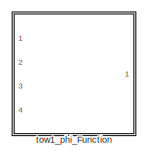
[diagram: root canvas - part 1/5, top center region]
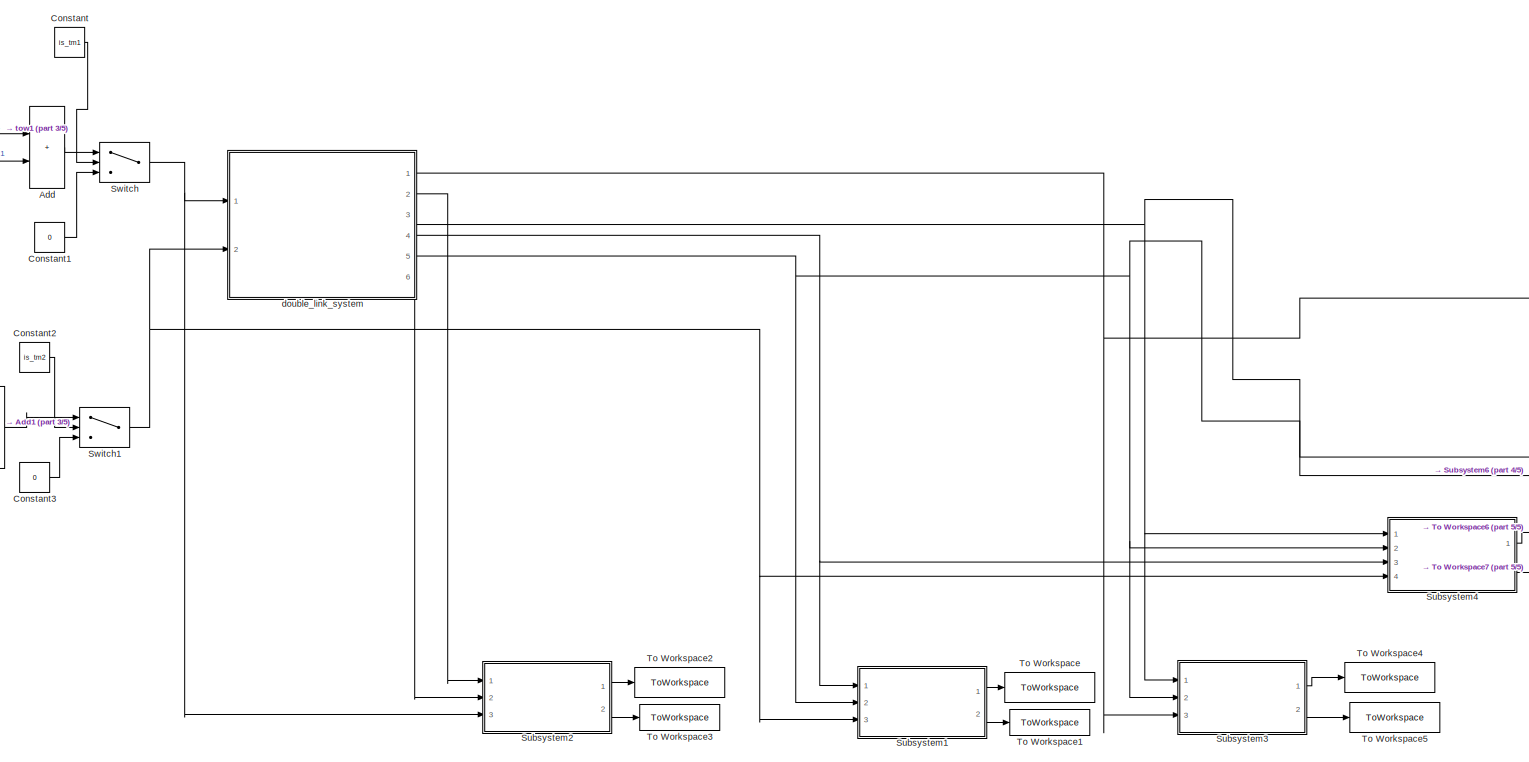
[diagram: root canvas - part 2/5, central region]
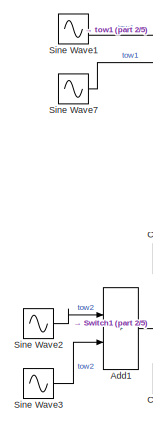
[diagram: root canvas - part 3/5, middle left region]
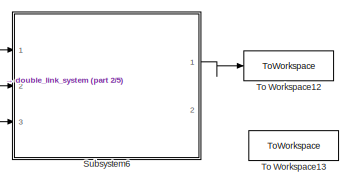
[diagram: root canvas - part 4/5, middle right region]
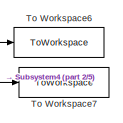
[diagram: root canvas - part 5/5, bottom right region]
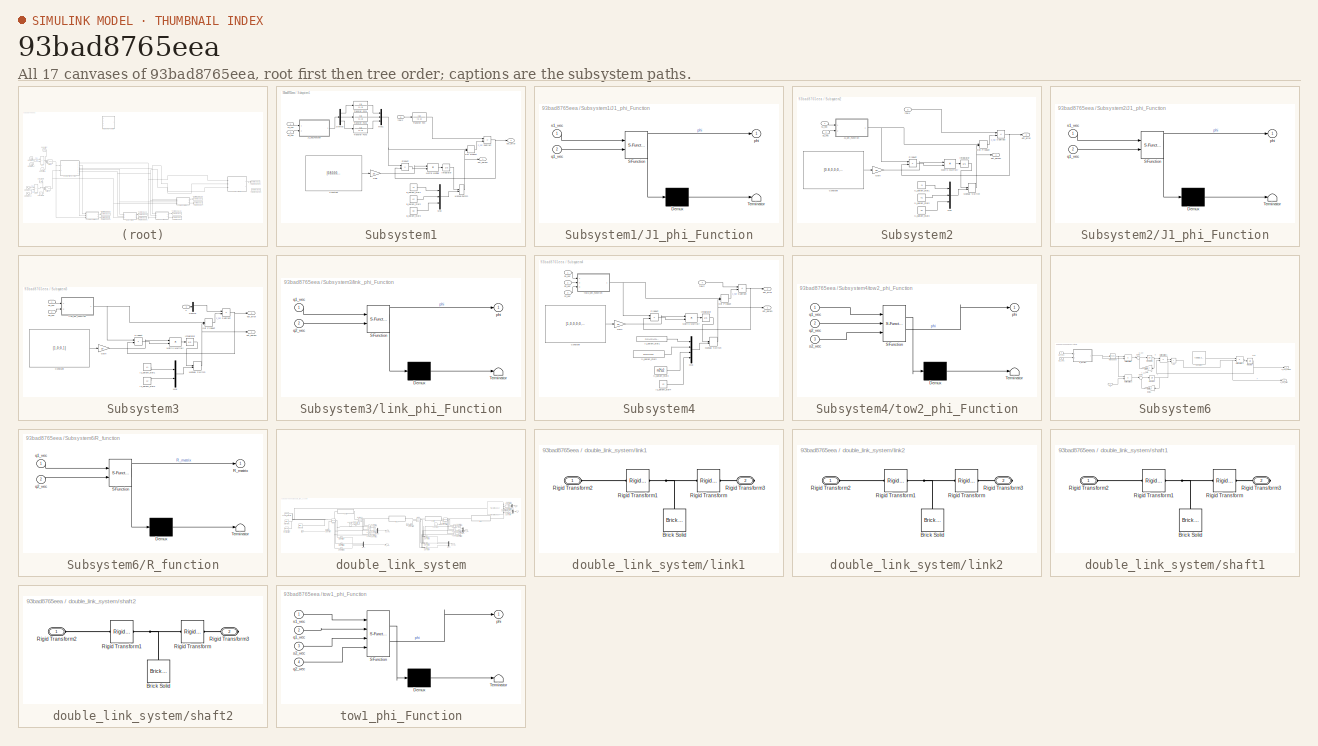
[diagram: thumbnail index - all 17 canvases of the model, root first then tree order]
MODEL slx_93bad8765eea
KIND model
CONFIG AbsTol = auto
CONFIG EnableMultiTasking = on
CONFIG FixedStep = auto
CONFIG MaxStep = 0.01
CONFIG MinStep = auto
CONFIG RelTol = 1e-5
CONFIG SampleTimeConstraint = Unconstrained
CONFIG SolverName = ode15s
CONFIG StartTime = 0.0
CONFIG StopTime = 10.0
BLOCK [Sum] Add
  IconShape = rectangular
  Ports = [2, 1]
BLOCK [Sum] Add1
  IconShape = rectangular
  Ports = [2, 1]
BLOCK [Constant] Constant
  Value = is_tm1
BLOCK [Constant] Constant1
  Value = 0
BLOCK [Constant] Constant2
  Value = is_tm2
BLOCK [Constant] Constant3
  Value = 0
BLOCK [Sin] Sine Wave1
  Amplitude = 2
  Ports = [0, 1]
  SampleTime = 0
BLOCK [Sin] Sine Wave2
  Amplitude = 2
  Ports = [0, 1]
  SampleTime = 0
BLOCK [Sin] Sine Wave3
  Frequency = 0.5
  Ports = [0, 1]
  SampleTime = 0
BLOCK [Sin] Sine Wave7
  Frequency = 0.5
  Ports = [0, 1]
  SampleTime = 0
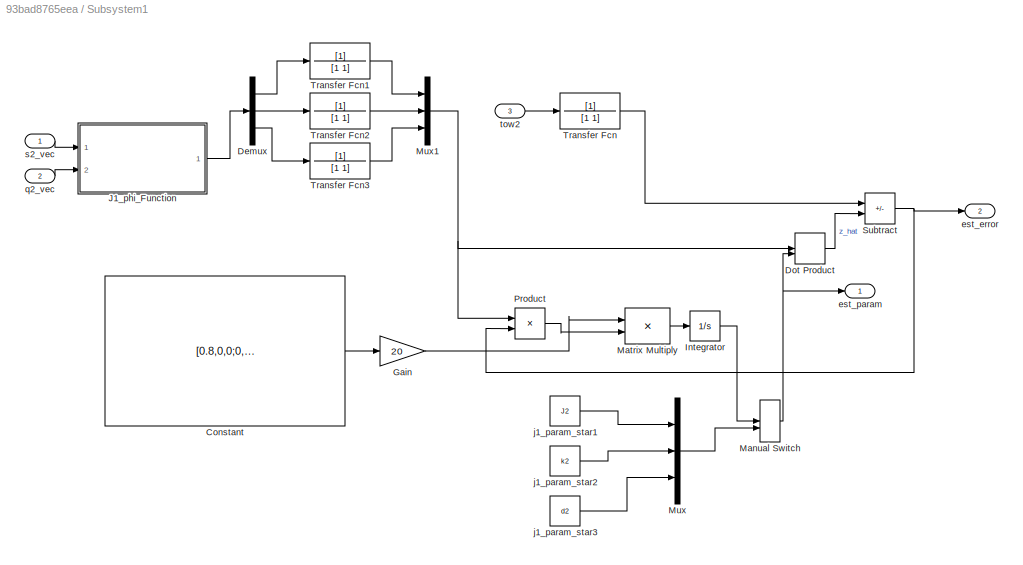
BLOCK [SubSystem] Subsystem1
  Ports = [3, 2]
  RequestExecContextInheritance = off
BLOCK [Constant] Subsystem1/Constant
  Value = [0.8,0,0;0,80,0;0,0,20]
BLOCK [Demux] Subsystem1/Demux
  Outputs = 3
  Ports = [1, 3]
BLOCK [DotProduct] Subsystem1/Dot Product
  OutDataTypeStr = Inherit: Inherit via internal rule
BLOCK [Gain] Subsystem1/Gain
  Gain = 20
BLOCK [Integrator] Subsystem1/Integrator
  InitialCondition = [0.0001;0.0001;0.0001]
  Ports = [1, 1]
BLOCK [SubSystem] Subsystem1/J1_phi_Function
  ErrorFcn = Stateflow.Translate.translate
  PermitHierarchicalResolution = ExplicitOnly
  Ports = [2, 1]
  RequestExecContextInheritance = off
  SFBlockType = MATLAB Function
  TreatAsAtomicUnit = on
BLOCK [Demux] Subsystem1/J1_phi_Function/ Demux 
  Outputs = 1
  Ports = [1, 1]
BLOCK [S-Function] Subsystem1/J1_phi_Function/ SFunction 
  EnableBusSupport = on
  FunctionName = sf_sfun
  PortCounts = [2 2]
  Ports = [2, 2]
  SFcnIsStateOwnerBlock = off
  SFunctionDeploymentMode = off
  Tag = Stateflow S-Function 3
BLOCK [Terminator] Subsystem1/J1_phi_Function/ Terminator 
BLOCK [Outport] Subsystem1/J1_phi_Function/phi
BLOCK [Inport] Subsystem1/J1_phi_Function/q1_vec
  Port = 2
BLOCK [Inport] Subsystem1/J1_phi_Function/s1_vec
BLOCK [ManualSwitch] Subsystem1/Manual Switch
BLOCK [Product] Subsystem1/Matrix Multiply
  Multiplication = Matrix(*)
  Ports = [2, 1]
BLOCK [Mux] Subsystem1/Mux
  DisplayOption = bar
  Inputs = 3
  Ports = [3, 1]
BLOCK [Mux] Subsystem1/Mux1
  DisplayOption = bar
  Inputs = 3
  Ports = [3, 1]
BLOCK [Product] Subsystem1/Product
  Ports = [2, 1]
BLOCK [Sum] Subsystem1/Subtract
  IconShape = rectangular
  Inputs = +-
  Ports = [2, 1]
BLOCK [TransferFcn] Subsystem1/Transfer Fcn
  Denominator = [1 1]
BLOCK [TransferFcn] Subsystem1/Transfer Fcn1
  Denominator = [1 1]
BLOCK [TransferFcn] Subsystem1/Transfer Fcn2
  Denominator = [1 1]
BLOCK [TransferFcn] Subsystem1/Transfer Fcn3
  Denominator = [1 1]
BLOCK [Outport] Subsystem1/est_error
  Port = 2
BLOCK [Outport] Subsystem1/est_param
BLOCK [Constant] Subsystem1/j1_param_star1
  Value = J2
BLOCK [Constant] Subsystem1/j1_param_star2
  Value = k2
BLOCK [Constant] Subsystem1/j1_param_star3
  Value = d2
BLOCK [Inport] Subsystem1/q2_vec
  Port = 2
BLOCK [Inport] Subsystem1/s2_vec
BLOCK [Inport] Subsystem1/tow2
  Port = 3
BLOCK [SubSystem] Subsystem2
  Ports = [3, 2]
  RequestExecContextInheritance = off
BLOCK [Constant] Subsystem2/Constant
  Value = [0.8,0,0;0,70,0;0,0,3]
BLOCK [DotProduct] Subsystem2/Dot Product
  OutDataTypeStr = Inherit: Inherit via internal rule
BLOCK [Gain] Subsystem2/Gain
  Gain = 20
BLOCK [Integrator] Subsystem2/Integrator
  InitialCondition = [0;0;0]
  Ports = [1, 1]
BLOCK [SubSystem] Subsystem2/J1_phi_Function
  ErrorFcn = Stateflow.Translate.translate
  PermitHierarchicalResolution = ExplicitOnly
  Ports = [2, 1]
  RequestExecContextInheritance = off
  SFBlockType = MATLAB Function
  TreatAsAtomicUnit = on
BLOCK [Demux] Subsystem2/J1_phi_Function/ Demux 
  Outputs = 1
  Ports = [1, 1]
BLOCK [S-Function] Subsystem2/J1_phi_Function/ SFunction 
  EnableBusSupport = on
  FunctionName = sf_sfun
  PortCounts = [2 2]
  Ports = [2, 2]
  SFcnIsStateOwnerBlock = off
  SFunctionDeploymentMode = off
  Tag = Stateflow S-Function 4
BLOCK [Terminator] Subsystem2/J1_phi_Function/ Terminator 
BLOCK [Outport] Subsystem2/J1_phi_Function/phi
BLOCK [Inport] Subsystem2/J1_phi_Function/q1_vec
  Port = 2
BLOCK [Inport] Subsystem2/J1_phi_Function/s1_vec
BLOCK [ManualSwitch] Subsystem2/Manual Switch
BLOCK [Product] Subsystem2/Matrix Multiply
  Multiplication = Matrix(*)
  Ports = [2, 1]
BLOCK [Mux] Subsystem2/Mux
  DisplayOption = bar
  Inputs = 3
  Ports = [3, 1]
BLOCK [Product] Subsystem2/Product
  Ports = [2, 1]
BLOCK [Sum] Subsystem2/Subtract
  IconShape = rectangular
  Inputs = +-
  Ports = [2, 1]
BLOCK [Outport] Subsystem2/est_error
  Port = 2
BLOCK [Outport] Subsystem2/est_param
BLOCK [Constant] Subsystem2/j1_param_star1
  Value = J1
BLOCK [Constant] Subsystem2/j1_param_star2
  Value = k1
BLOCK [Constant] Subsystem2/j1_param_star3
  Value = d1
BLOCK [Inport] Subsystem2/q1_vec
  Port = 2
BLOCK [Inport] Subsystem2/s1_vec
BLOCK [Inport] Subsystem2/tow1
  Port = 3
BLOCK [SubSystem] Subsystem3
  Ports = [3, 2]
  RequestExecContextInheritance = off
BLOCK [Constant] Subsystem3/Constant
  Value = [1,0;0,1]
BLOCK [Demux] Subsystem3/Demux
  Outputs = 2
  Ports = [1, 2]
BLOCK [DotProduct] Subsystem3/Dot Product
  OutDataTypeStr = Inherit: Inherit via internal rule
BLOCK [Gain] Subsystem3/Gain
  Gain = 20
BLOCK [Integrator] Subsystem3/Integrator
  InitialCondition = [0;0]
  Ports = [1, 1]
BLOCK [ManualSwitch] Subsystem3/Manual Switch
BLOCK [Product] Subsystem3/Matrix Multiply
  Multiplication = Matrix(*)
  Ports = [2, 1]
BLOCK [Mux] Subsystem3/Mux
  DisplayOption = bar
  Inputs = 2
  Ports = [2, 1]
BLOCK [Product] Subsystem3/Product
  Ports = [2, 1]
BLOCK [Sum] Subsystem3/Subtract
  IconShape = rectangular
  Inputs = +-
  Ports = [2, 1]
BLOCK [Inport] Subsystem3/V
  Port = 3
BLOCK [Outport] Subsystem3/est_error
  Port = 2
BLOCK [Outport] Subsystem3/est_param
BLOCK [Constant] Subsystem3/j1_param_star1
  Value = L1
BLOCK [Constant] Subsystem3/j1_param_star2
  Value = L2
BLOCK [SubSystem] Subsystem3/link_phi_Function
  ErrorFcn = Stateflow.Translate.translate
  PermitHierarchicalResolution = ExplicitOnly
  Ports = [2, 1]
  RequestExecContextInheritance = off
  SFBlockType = MATLAB Function
  TreatAsAtomicUnit = on
BLOCK [Demux] Subsystem3/link_phi_Function/ Demux 
  Outputs = 1
  Ports = [1, 1]
BLOCK [S-Function] Subsystem3/link_phi_Function/ SFunction 
  EnableBusSupport = on
  FunctionName = sf_sfun
  PortCounts = [2 2]
  Ports = [2, 2]
  SFcnIsStateOwnerBlock = off
  SFunctionDeploymentMode = off
  Tag = Stateflow S-Function 5
BLOCK [Terminator] Subsystem3/link_phi_Function/ Terminator 
BLOCK [Outport] Subsystem3/link_phi_Function/phi
BLOCK [Inport] Subsystem3/link_phi_Function/q1_vec
BLOCK [Inport] Subsystem3/link_phi_Function/q2_vec
  Port = 2
BLOCK [Inport] Subsystem3/q1_vec
BLOCK [Inport] Subsystem3/q2_vec
  Port = 2
BLOCK [SubSystem] Subsystem4
  Ports = [4, 2]
  RequestExecContextInheritance = off
BLOCK [Constant] Subsystem4/Constant
  Value = [1,0,0,0;0,1,0,0;0,0,1,0;0,0,0,1]
BLOCK [DotProduct] Subsystem4/Dot Product
  OutDataTypeStr = Inherit: Inherit via internal rule
BLOCK [Gain] Subsystem4/Gain
  Gain = 20
BLOCK [Integrator] Subsystem4/Integrator
  InitialCondition = [0;0;0;0]
  Ports = [1, 1]
BLOCK [ManualSwitch] Subsystem4/Manual Switch
BLOCK [Product] Subsystem4/Matrix Multiply
  Multiplication = Matrix(*)
  Ports = [2, 1]
BLOCK [Mux] Subsystem4/Mux
  DisplayOption = bar
  Ports = [4, 1]
BLOCK [Product] Subsystem4/Product
  Ports = [2, 1]
BLOCK [Sum] Subsystem4/Subtract
  IconShape = rectangular
  Inputs = +-
  Ports = [2, 1]
BLOCK [Outport] Subsystem4/est_error
  Port = 2
BLOCK [Outport] Subsystem4/est_param
BLOCK [Constant] Subsystem4/j1_param_star1
  Value = m2*Lc2*Lc2+Izz2
BLOCK [Constant] Subsystem4/j1_param_star2
  Value = m2*L1*Lc2
BLOCK [Constant] Subsystem4/j1_param_star3
  Value = m2*Lc2
BLOCK [Constant] Subsystem4/j1_param_star4
  Value = J2
BLOCK [Inport] Subsystem4/q1_vec
BLOCK [Inport] Subsystem4/q2_vec
  Port = 2
BLOCK [Inport] Subsystem4/s2_vec
  Port = 3
BLOCK [Inport] Subsystem4/tow2
  Port = 4
BLOCK [SubSystem] Subsystem4/tow2_phi_Function
  ErrorFcn = Stateflow.Translate.translate
  PermitHierarchicalResolution = ExplicitOnly
  Ports = [3, 1]
  RequestExecContextInheritance = off
  SFBlockType = MATLAB Function
  TreatAsAtomicUnit = on
BLOCK [Demux] Subsystem4/tow2_phi_Function/ Demux 
  Outputs = 1
  Ports = [1, 1]
BLOCK [S-Function] Subsystem4/tow2_phi_Function/ SFunction 
  EnableBusSupport = on
  FunctionName = sf_sfun
  PortCounts = [3 2]
  Ports = [3, 2]
  SFcnIsStateOwnerBlock = off
  SFunctionDeploymentMode = off
  Tag = Stateflow S-Function 1
BLOCK [Terminator] Subsystem4/tow2_phi_Function/ Terminator 
BLOCK [Outport] Subsystem4/tow2_phi_Function/phi
BLOCK [Inport] Subsystem4/tow2_phi_Function/q1_vec
BLOCK [Inport] Subsystem4/tow2_phi_Function/q2_vec
  Port = 2
BLOCK [Inport] Subsystem4/tow2_phi_Function/s2_vec
  Port = 3
BLOCK [SubSystem] Subsystem6
  Ports = [3, 2]
  RequestExecContextInheritance = off
BLOCK [Sum] Subsystem6/Add
  IconShape = rectangular
  Ports = [2, 1]
BLOCK [Gain] Subsystem6/Beta
  Gain = -theta_f
BLOCK [Gain] Subsystem6/Beta1
  Gain = -theta_f
BLOCK [Constant] Subsystem6/Constant
  Value = [-20,0;0,-20]
BLOCK [Integrator] Subsystem6/Integrator
  InitialCondition = [0;0]
  Ports = [1, 1]
BLOCK [Integrator] Subsystem6/IntegratorD
  InitialCondition = [0,0;0,0]
  Ports = [1, 1]
BLOCK [Integrator] Subsystem6/IntegratorT
  InitialCondition = [0;0]
  Ports = [1, 1]
BLOCK [Outport] Subsystem6/Lf_est_error
  Port = 2
BLOCK [Outport] Subsystem6/Lf_est_param
BLOCK [Product] Subsystem6/Matrix Multiply
  Multiplication = Matrix(*)
  NameLocation = top
  Ports = [2, 1]
BLOCK [Product] Subsystem6/Matrix Multiply1
  Multiplication = Matrix(*)
  NameLocation = top
  Ports = [2, 1]
BLOCK [Product] Subsystem6/Matrix Multiply2
  Multiplication = Matrix(*)
  Ports = [2, 1]
BLOCK [Product] Subsystem6/Matrix Multiply3
  Multiplication = Matrix(*)
  NameLocation = top
  Ports = [2, 1]
BLOCK [SubSystem] Subsystem6/R_function
  ErrorFcn = Stateflow.Translate.translate
  PermitHierarchicalResolution = ExplicitOnly
  Ports = [2, 1]
  RequestExecContextInheritance = off
  SFBlockType = MATLAB Function
  TreatAsAtomicUnit = on
BLOCK [Demux] Subsystem6/R_function/ Demux 
  Outputs = 1
  Ports = [1, 1]
BLOCK [S-Function] Subsystem6/R_function/ SFunction 
  EnableBusSupport = on
  FunctionName = sf_sfun
  PortCounts = [2 2]
  Ports = [2, 2]
  SFcnIsStateOwnerBlock = off
  SFunctionDeploymentMode = off
  Tag = Stateflow S-Function 8
BLOCK [Terminator] Subsystem6/R_function/ Terminator 
BLOCK [Outport] Subsystem6/R_function/R_matrix
BLOCK [Inport] Subsystem6/R_function/q1_vec
BLOCK [Inport] Subsystem6/R_function/q2_vec
  Port = 2
BLOCK [Sum] Subsystem6/Sum1
  Inputs = |++
  Ports = [2, 1]
BLOCK [Sum] Subsystem6/Sum2
  Inputs = |-+
  Ports = [2, 1]
BLOCK [Math] Subsystem6/Transpose
  Operator = transpose
  Ports = [1, 1]
BLOCK [Inport] Subsystem6/V
BLOCK [Inport] Subsystem6/q1_vec
  Port = 2
BLOCK [Inport] Subsystem6/q2_vec
  Port = 3
BLOCK [Switch] Switch
  Criteria = u2 > Threshold
  InputSameDT = off
  SaturateOnIntegerOverflow = off
BLOCK [Switch] Switch1
  Criteria = u2 > Threshold
  InputSameDT = off
  SaturateOnIntegerOverflow = off
BLOCK [ToWorkspace] To Workspace
  FixptAsFi = on
  MaxDataPoints = inf
  Ports = [1]
  SampleTime = -1
  SaveFormat = Timeseries
  VariableName = J2_est_param
BLOCK [ToWorkspace] To Workspace1
  FixptAsFi = on
  MaxDataPoints = inf
  Ports = [1]
  SampleTime = -1
  SaveFormat = Timeseries
  VariableName = J2_est_error
BLOCK [ToWorkspace] To Workspace12
  FixptAsFi = on
  MaxDataPoints = inf
  Ports = [1]
  SampleTime = -1
  SaveFormat = Timeseries
  VariableName = Lf_est_param
BLOCK [ToWorkspace] To Workspace13
  FixptAsFi = on
  MaxDataPoints = inf
  Ports = [1]
  SampleTime = -1
  SaveFormat = Timeseries
  VariableName = Lf_est_error
BLOCK [ToWorkspace] To Workspace2
  FixptAsFi = on
  MaxDataPoints = inf
  Ports = [1]
  SampleTime = -1
  SaveFormat = Timeseries
  VariableName = J1_est_param
BLOCK [ToWorkspace] To Workspace3
  FixptAsFi = on
  MaxDataPoints = inf
  Ports = [1]
  SampleTime = -1
  SaveFormat = Timeseries
  VariableName = J1_est_error
BLOCK [ToWorkspace] To Workspace4
  FixptAsFi = on
  MaxDataPoints = inf
  Ports = [1]
  SampleTime = -1
  SaveFormat = Timeseries
  VariableName = L_est_param
BLOCK [ToWorkspace] To Workspace5
  FixptAsFi = on
  MaxDataPoints = inf
  Ports = [1]
  SampleTime = -1
  SaveFormat = Timeseries
  VariableName = L_est_error
BLOCK [ToWorkspace] To Workspace6
  FixptAsFi = on
  MaxDataPoints = inf
  Ports = [1]
  SampleTime = -1
  SaveFormat = Timeseries
  VariableName = tow2_est_param
BLOCK [ToWorkspace] To Workspace7
  FixptAsFi = on
  MaxDataPoints = inf
  Ports = [1]
  SampleTime = -1
  SaveFormat = Timeseries
  VariableName = tow2_est_error
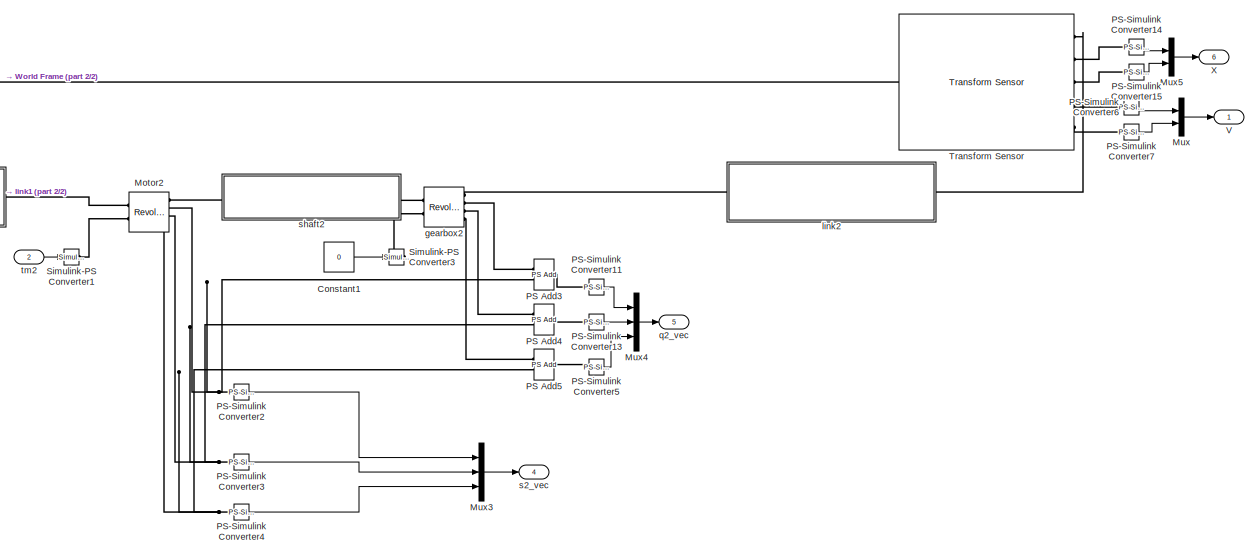
[diagram: double_link_system - part 1/2, right side, full height]
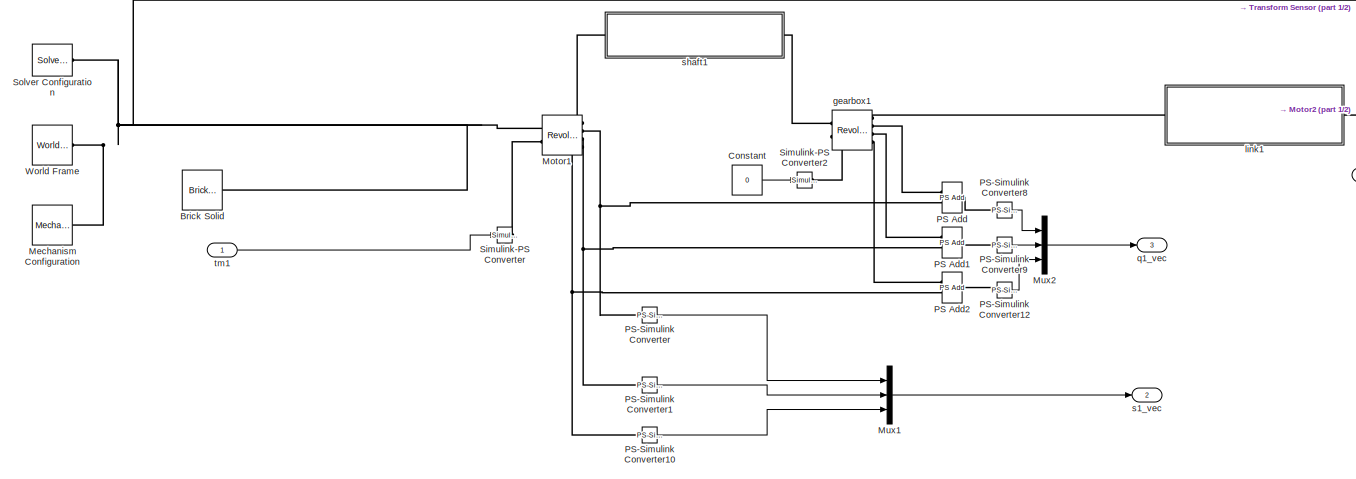
[diagram: double_link_system - part 2/2, left side, full height]
BLOCK [SubSystem] double_link_system
  Ports = [2, 6]
  RequestExecContextInheritance = off
BLOCK [Reference] double_link_system/Brick Solid  REF=sm_lib/Body Elements/Brick Solid
  Commented = on
  Ports = [0, 0, 0, 0, 0, 0, 1]
  SourceBlock = sm_lib/Body Elements/Brick Solid
  SourceProductBaseCode = MS
  SourceType = Brick Solid
BLOCK [Constant] double_link_system/Constant
  Value = 0
BLOCK [Constant] double_link_system/Constant1
  Value = 0
BLOCK [Reference] double_link_system/Mechanism Configuration  REF=sm_lib/Utilities/Mechanism
Configuration
  Ports = [0, 0, 0, 0, 0, 0, 1]
  SourceBlock = sm_lib/Utilities/Mechanism\nConfiguration
  SourceProductBaseCode = MS
  SourceType = Mechanism\nConfiguration
BLOCK [Reference] double_link_system/Motor1  REF=sm_lib/Joints/Revolute Joint
  Ports = [0, 0, 0, 0, 0, 2, 4]
  SourceBlock = sm_lib/Joints/Revolute Joint
  SourceProductBaseCode = MS
  SourceType = Revolute Joint
BLOCK [Reference] double_link_system/Motor2  REF=sm_lib/Joints/Revolute Joint
  Ports = [0, 0, 0, 0, 0, 2, 4]
  SourceBlock = sm_lib/Joints/Revolute Joint
  SourceProductBaseCode = MS
  SourceType = Revolute Joint
BLOCK [Mux] double_link_system/Mux
  DisplayOption = bar
  Inputs = 2
  Ports = [2, 1]
BLOCK [Mux] double_link_system/Mux1
  DisplayOption = bar
  Inputs = 3
  Ports = [3, 1]
BLOCK [Mux] double_link_system/Mux2
  DisplayOption = bar
  Inputs = 3
  Ports = [3, 1]
BLOCK [Mux] double_link_system/Mux3
  DisplayOption = bar
  Inputs = 3
  Ports = [3, 1]
BLOCK [Mux] double_link_system/Mux4
  DisplayOption = bar
  Inputs = 3
  Ports = [3, 1]
BLOCK [Mux] double_link_system/Mux5
  DisplayOption = bar
  Inputs = 2
  Ports = [2, 1]
BLOCK [Reference] double_link_system/PS Add  REF=fl_lib/Physical Signals/Functions/PS Add
  Ports = [0, 0, 0, 0, 0, 2, 1]
  SourceBlock = fl_lib/Physical Signals/Functions/PS Add
  SourceProductBaseCode = SS
  SourceType = PS Add
BLOCK [Reference] double_link_system/PS Add1  REF=fl_lib/Physical Signals/Functions/PS Add
  Ports = [0, 0, 0, 0, 0, 2, 1]
  SourceBlock = fl_lib/Physical Signals/Functions/PS Add
  SourceProductBaseCode = SS
  SourceType = PS Add
BLOCK [Reference] double_link_system/PS Add2  REF=fl_lib/Physical Signals/Functions/PS Add
  Ports = [0, 0, 0, 0, 0, 2, 1]
  SourceBlock = fl_lib/Physical Signals/Functions/PS Add
  SourceProductBaseCode = SS
  SourceType = PS Add
BLOCK [Reference] double_link_system/PS Add3  REF=fl_lib/Physical Signals/Functions/PS Add
  Ports = [0, 0, 0, 0, 0, 2, 1]
  SourceBlock = fl_lib/Physical Signals/Functions/PS Add
  SourceProductBaseCode = SS
  SourceType = PS Add
BLOCK [Reference] double_link_system/PS Add4  REF=fl_lib/Physical Signals/Functions/PS Add
  Ports = [0, 0, 0, 0, 0, 2, 1]
  SourceBlock = fl_lib/Physical Signals/Functions/PS Add
  SourceProductBaseCode = SS
  SourceType = PS Add
BLOCK [Reference] double_link_system/PS Add5  REF=fl_lib/Physical Signals/Functions/PS Add
  Ports = [0, 0, 0, 0, 0, 2, 1]
  SourceBlock = fl_lib/Physical Signals/Functions/PS Add
  SourceProductBaseCode = SS
  SourceType = PS Add
BLOCK [Reference] double_link_system/PS-Simulink Converter  REF=nesl_utility/PS-Simulink
Converter
  Ports = [0, 1, 0, 0, 0, 1]
  SourceBlock = nesl_utility/PS-Simulink\nConverter
  SourceProductBaseCode = SS
  SourceType = PS-Simulink\nConverter
BLOCK [Reference] double_link_system/PS-Simulink Converter1  REF=nesl_utility/PS-Simulink
Converter
  Ports = [0, 1, 0, 0, 0, 1]
  SourceBlock = nesl_utility/PS-Simulink\nConverter
  SourceProductBaseCode = SS
  SourceType = PS-Simulink\nConverter
BLOCK [Reference] double_link_system/PS-Simulink Converter10  REF=nesl_utility/PS-Simulink
Converter
  NameLocation = left
  Ports = [0, 1, 0, 0, 0, 1]
  SourceBlock = nesl_utility/PS-Simulink\nConverter
  SourceProductBaseCode = SS
  SourceType = PS-Simulink\nConverter
BLOCK [Reference] double_link_system/PS-Simulink Converter11  REF=nesl_utility/PS-Simulink
Converter
  Ports = [0, 1, 0, 0, 0, 1]
  SourceBlock = nesl_utility/PS-Simulink\nConverter
  SourceProductBaseCode = SS
  SourceType = PS-Simulink\nConverter
BLOCK [Reference] double_link_system/PS-Simulink Converter12  REF=nesl_utility/PS-Simulink
Converter
  Ports = [0, 1, 0, 0, 0, 1]
  SourceBlock = nesl_utility/PS-Simulink\nConverter
  SourceProductBaseCode = SS
  SourceType = PS-Simulink\nConverter
BLOCK [Reference] double_link_system/PS-Simulink Converter13  REF=nesl_utility/PS-Simulink
Converter
  Ports = [0, 1, 0, 0, 0, 1]
  SourceBlock = nesl_utility/PS-Simulink\nConverter
  SourceProductBaseCode = SS
  SourceType = PS-Simulink\nConverter
BLOCK [Reference] double_link_system/PS-Simulink Converter14  REF=nesl_utility/PS-Simulink
Converter
  Ports = [0, 1, 0, 0, 0, 1]
  SourceBlock = nesl_utility/PS-Simulink\nConverter
  SourceProductBaseCode = SS
  SourceType = PS-Simulink\nConverter
BLOCK [Reference] double_link_system/PS-Simulink Converter15  REF=nesl_utility/PS-Simulink
Converter
  Ports = [0, 1, 0, 0, 0, 1]
  SourceBlock = nesl_utility/PS-Simulink\nConverter
  SourceProductBaseCode = SS
  SourceType = PS-Simulink\nConverter
BLOCK [Reference] double_link_system/PS-Simulink Converter2  REF=nesl_utility/PS-Simulink
Converter
  Ports = [0, 1, 0, 0, 0, 1]
  SourceBlock = nesl_utility/PS-Simulink\nConverter
  SourceProductBaseCode = SS
  SourceType = PS-Simulink\nConverter
BLOCK [Reference] double_link_system/PS-Simulink Converter3  REF=nesl_utility/PS-Simulink
Converter
  Ports = [0, 1, 0, 0, 0, 1]
  SourceBlock = nesl_utility/PS-Simulink\nConverter
  SourceProductBaseCode = SS
  SourceType = PS-Simulink\nConverter
BLOCK [Reference] double_link_system/PS-Simulink Converter4  REF=nesl_utility/PS-Simulink
Converter
  NameLocation = left
  Ports = [0, 1, 0, 0, 0, 1]
  SourceBlock = nesl_utility/PS-Simulink\nConverter
  SourceProductBaseCode = SS
  SourceType = PS-Simulink\nConverter
BLOCK [Reference] double_link_system/PS-Simulink Converter5  REF=nesl_utility/PS-Simulink
Converter
  Ports = [0, 1, 0, 0, 0, 1]
  SourceBlock = nesl_utility/PS-Simulink\nConverter
  SourceProductBaseCode = SS
  SourceType = PS-Simulink\nConverter
BLOCK [Reference] double_link_system/PS-Simulink Converter6  REF=nesl_utility/PS-Simulink
Converter
  Ports = [0, 1, 0, 0, 0, 1]
  SourceBlock = nesl_utility/PS-Simulink\nConverter
  SourceProductBaseCode = SS
  SourceType = PS-Simulink\nConverter
BLOCK [Reference] double_link_system/PS-Simulink Converter7  REF=nesl_utility/PS-Simulink
Converter
  Ports = [0, 1, 0, 0, 0, 1]
  SourceBlock = nesl_utility/PS-Simulink\nConverter
  SourceProductBaseCode = SS
  SourceType = PS-Simulink\nConverter
BLOCK [Reference] double_link_system/PS-Simulink Converter8  REF=nesl_utility/PS-Simulink
Converter
  Ports = [0, 1, 0, 0, 0, 1]
  SourceBlock = nesl_utility/PS-Simulink\nConverter
  SourceProductBaseCode = SS
  SourceType = PS-Simulink\nConverter
BLOCK [Reference] double_link_system/PS-Simulink Converter9  REF=nesl_utility/PS-Simulink
Converter
  Ports = [0, 1, 0, 0, 0, 1]
  SourceBlock = nesl_utility/PS-Simulink\nConverter
  SourceProductBaseCode = SS
  SourceType = PS-Simulink\nConverter
BLOCK [Reference] double_link_system/Simulink-PS Converter  REF=nesl_utility/Simulink-PS
Converter
  Ports = [1, 0, 0, 0, 0, 0, 1]
  SourceBlock = nesl_utility/Simulink-PS\nConverter
  SourceProductBaseCode = SS
  SourceType = Simulink-PS\nConverter
BLOCK [Reference] double_link_system/Simulink-PS Converter1  REF=nesl_utility/Simulink-PS
Converter
  Ports = [1, 0, 0, 0, 0, 0, 1]
  SourceBlock = nesl_utility/Simulink-PS\nConverter
  SourceProductBaseCode = SS
  SourceType = Simulink-PS\nConverter
BLOCK [Reference] double_link_system/Simulink-PS Converter2  REF=nesl_utility/Simulink-PS
Converter
  Ports = [1, 0, 0, 0, 0, 0, 1]
  SourceBlock = nesl_utility/Simulink-PS\nConverter
  SourceProductBaseCode = SS
  SourceType = Simulink-PS\nConverter
BLOCK [Reference] double_link_system/Simulink-PS Converter3  REF=nesl_utility/Simulink-PS
Converter
  Ports = [1, 0, 0, 0, 0, 0, 1]
  SourceBlock = nesl_utility/Simulink-PS\nConverter
  SourceProductBaseCode = SS
  SourceType = Simulink-PS\nConverter
BLOCK [Reference] double_link_system/Solver Configuration  REF=nesl_utility/Solver
Configuration
  Ports = [0, 0, 0, 0, 0, 0, 1]
  SourceBlock = nesl_utility/Solver\nConfiguration
  SourceProductBaseCode = SS
  SourceType = Solver\nConfiguration
BLOCK [Reference] double_link_system/Transform Sensor  REF=sm_lib/Frames and
Transforms/Transform
Sensor
  Ports = [0, 0, 0, 0, 0, 1, 5]
  SourceBlock = sm_lib/Frames and\nTransforms/Transform\nSensor
  SourceProductBaseCode = MS
  SourceType = Transform\nSensor
BLOCK [Outport] double_link_system/V
BLOCK [Reference] double_link_system/World Frame  REF=sm_lib/Frames and
Transforms/World Frame
  Ports = [0, 0, 0, 0, 0, 0, 1]
  SourceBlock = sm_lib/Frames and\nTransforms/World Frame
  SourceProductBaseCode = MS
  SourceType = World Frame
BLOCK [Outport] double_link_system/X
  Port = 6
BLOCK [Reference] double_link_system/gearbox1  REF=sm_lib/Joints/Revolute Joint
  Ports = [0, 0, 0, 0, 0, 2, 4]
  SourceBlock = sm_lib/Joints/Revolute Joint
  SourceProductBaseCode = MS
  SourceType = Revolute Joint
BLOCK [Reference] double_link_system/gearbox2  REF=sm_lib/Joints/Revolute Joint
  Ports = [0, 0, 0, 0, 0, 2, 4]
  SourceBlock = sm_lib/Joints/Revolute Joint
  SourceProductBaseCode = MS
  SourceType = Revolute Joint
BLOCK [SubSystem] double_link_system/link1
  Ports = [0, 0, 0, 0, 0, 1, 1]
  RequestExecContextInheritance = off
BLOCK [Reference] double_link_system/link1/Brick Solid  REF=sm_lib/Body Elements/Brick Solid
  Ports = [0, 0, 0, 0, 0, 0, 1]
  SourceBlock = sm_lib/Body Elements/Brick Solid
  SourceProductBaseCode = MS
  SourceType = Brick Solid
BLOCK [Reference] double_link_system/link1/Rigid Transform  REF=sm_lib/Frames and
Transforms/Rigid
Transform
  Ports = [0, 0, 0, 0, 0, 1, 1]
  SourceBlock = sm_lib/Frames and\nTransforms/Rigid\nTransform
  SourceProductBaseCode = MS
  SourceType = Rigid\nTransform
BLOCK [Reference] double_link_system/link1/Rigid Transform1  REF=sm_lib/Frames and
Transforms/Rigid
Transform
  Ports = [0, 0, 0, 0, 0, 1, 1]
  SourceBlock = sm_lib/Frames and\nTransforms/Rigid\nTransform
  SourceProductBaseCode = MS
  SourceType = Rigid\nTransform
BLOCK [PMIOPort] double_link_system/link1/Rigid Transform2
  Side = Left
BLOCK [PMIOPort] double_link_system/link1/Rigid Transform3
  Port = 2
  Side = Right
BLOCK [SubSystem] double_link_system/link2
  Ports = [0, 0, 0, 0, 0, 1, 1]
  RequestExecContextInheritance = off
BLOCK [Reference] double_link_system/link2/Brick Solid  REF=sm_lib/Body Elements/Brick Solid
  Ports = [0, 0, 0, 0, 0, 0, 1]
  SourceBlock = sm_lib/Body Elements/Brick Solid
  SourceProductBaseCode = MS
  SourceType = Brick Solid
BLOCK [Reference] double_link_system/link2/Rigid Transform  REF=sm_lib/Frames and
Transforms/Rigid
Transform
  Ports = [0, 0, 0, 0, 0, 1, 1]
  SourceBlock = sm_lib/Frames and\nTransforms/Rigid\nTransform
  SourceProductBaseCode = MS
  SourceType = Rigid\nTransform
BLOCK [Reference] double_link_system/link2/Rigid Transform1  REF=sm_lib/Frames and
Transforms/Rigid
Transform
  Ports = [0, 0, 0, 0, 0, 1, 1]
  SourceBlock = sm_lib/Frames and\nTransforms/Rigid\nTransform
  SourceProductBaseCode = MS
  SourceType = Rigid\nTransform
BLOCK [PMIOPort] double_link_system/link2/Rigid Transform2
  Side = Left
BLOCK [PMIOPort] double_link_system/link2/Rigid Transform3
  Port = 2
  Side = Right
BLOCK [Outport] double_link_system/q1_vec
  Port = 3
BLOCK [Outport] double_link_system/q2_vec
  Port = 5
BLOCK [Outport] double_link_system/s1_vec
  Port = 2
BLOCK [Outport] double_link_system/s2_vec
  Port = 4
BLOCK [SubSystem] double_link_system/shaft1
  Ports = [0, 0, 0, 0, 0, 1, 1]
  RequestExecContextInheritance = off
BLOCK [Reference] double_link_system/shaft1/Brick Solid  REF=sm_lib/Body Elements/Brick Solid
  Ports = [0, 0, 0, 0, 0, 0, 1]
  SourceBlock = sm_lib/Body Elements/Brick Solid
  SourceProductBaseCode = MS
  SourceType = Brick Solid
BLOCK [Reference] double_link_system/shaft1/Rigid Transform  REF=sm_lib/Frames and
Transforms/Rigid
Transform
  Ports = [0, 0, 0, 0, 0, 1, 1]
  SourceBlock = sm_lib/Frames and\nTransforms/Rigid\nTransform
  SourceProductBaseCode = MS
  SourceType = Rigid\nTransform
BLOCK [Reference] double_link_system/shaft1/Rigid Transform1  REF=sm_lib/Frames and
Transforms/Rigid
Transform
  Ports = [0, 0, 0, 0, 0, 1, 1]
  SourceBlock = sm_lib/Frames and\nTransforms/Rigid\nTransform
  SourceProductBaseCode = MS
  SourceType = Rigid\nTransform
BLOCK [PMIOPort] double_link_system/shaft1/Rigid Transform2
  Side = Left
BLOCK [PMIOPort] double_link_system/shaft1/Rigid Transform3
  Port = 2
  Side = Right
BLOCK [SubSystem] double_link_system/shaft2
  Ports = [0, 0, 0, 0, 0, 1, 1]
  RequestExecContextInheritance = off
BLOCK [Reference] double_link_system/shaft2/Brick Solid  REF=sm_lib/Body Elements/Brick Solid
  Ports = [0, 0, 0, 0, 0, 0, 1]
  SourceBlock = sm_lib/Body Elements/Brick Solid
  SourceProductBaseCode = MS
  SourceType = Brick Solid
BLOCK [Reference] double_link_system/shaft2/Rigid Transform  REF=sm_lib/Frames and
Transforms/Rigid
Transform
  Ports = [0, 0, 0, 0, 0, 1, 1]
  SourceBlock = sm_lib/Frames and\nTransforms/Rigid\nTransform
  SourceProductBaseCode = MS
  SourceType = Rigid\nTransform
BLOCK [Reference] double_link_system/shaft2/Rigid Transform1  REF=sm_lib/Frames and
Transforms/Rigid
Transform
  Ports = [0, 0, 0, 0, 0, 1, 1]
  SourceBlock = sm_lib/Frames and\nTransforms/Rigid\nTransform
  SourceProductBaseCode = MS
  SourceType = Rigid\nTransform
BLOCK [PMIOPort] double_link_system/shaft2/Rigid Transform2
  Side = Left
BLOCK [PMIOPort] double_link_system/shaft2/Rigid Transform3
  Port = 2
  Side = Right
BLOCK [Inport] double_link_system/tm1
BLOCK [Inport] double_link_system/tm2
  Port = 2
BLOCK [SubSystem] tow1_phi_Function
  Commented = on
  ErrorFcn = Stateflow.Translate.translate
  PermitHierarchicalResolution = ExplicitOnly
  Ports = [4, 1]
  RequestExecContextInheritance = off
  SFBlockType = MATLAB Function
  TreatAsAtomicUnit = on
BLOCK [Demux] tow1_phi_Function/ Demux 
  Outputs = 1
  Ports = [1, 1]
BLOCK [S-Function] tow1_phi_Function/ SFunction 
  EnableBusSupport = on
  FunctionName = sf_sfun
  PortCounts = [4 2]
  Ports = [4, 2]
  SFcnIsStateOwnerBlock = off
  SFunctionDeploymentMode = off
  Tag = Stateflow S-Function 2
BLOCK [Terminator] tow1_phi_Function/ Terminator 
BLOCK [Outport] tow1_phi_Function/phi
BLOCK [Inport] tow1_phi_Function/q1_vec
  Port = 2
BLOCK [Inport] tow1_phi_Function/q2_vec
  Port = 4
BLOCK [Inport] tow1_phi_Function/s1_vec
BLOCK [Inport] tow1_phi_Function/s2_vec
  Port = 3
ANNOTATION Subsystem6: D
ANNOTATION Subsystem6: D_dot
ANNOTATION Subsystem6: T
ANNOTATION Subsystem6: T_dot
ANNOTATION Subsystem6: theta
LINE Add1:1 -> Switch1:1
LINE Add:1 -> Switch:1
LINE Constant1:1 -> Switch:3
LINE Constant2:1 -> Switch1:2
LINE Constant3:1 -> Switch1:3
LINE Constant:1 -> Switch:2
LINE Sine Wave1:1 -> Add:1
LINE Sine Wave2:1 -> Add1:1
LINE Sine Wave3:1 -> Add1:2
LINE Sine Wave7:1 -> Add:2
LINE Subsystem1/Constant:1 -> Subsystem1/Gain:1
LINE Subsystem1/Demux:1 -> Subsystem1/Transfer Fcn1:1
LINE Subsystem1/Demux:2 -> Subsystem1/Transfer Fcn2:1
LINE Subsystem1/Demux:3 -> Subsystem1/Transfer Fcn3:1
LINE Subsystem1/Dot Product:1 -> Subsystem1/Subtract:2
LINE Subsystem1/Gain:1 -> Subsystem1/Matrix Multiply:1
LINE Subsystem1/Integrator:1 -> Subsystem1/Manual Switch:1
LINE Subsystem1/J1_phi_Function:1 -> Subsystem1/Demux:1
NET Subsystem1/Manual Switch:1 -> Subsystem1/Dot Product:2, Subsystem1/est_param:1
LINE Subsystem1/Matrix Multiply:1 -> Subsystem1/Integrator:1
NET Subsystem1/Mux1:1 -> Subsystem1/Dot Product:1, Subsystem1/Product:1
LINE Subsystem1/Mux:1 -> Subsystem1/Manual Switch:2
LINE Subsystem1/Product:1 -> Subsystem1/Matrix Multiply:2
NET Subsystem1/Subtract:1 -> Subsystem1/Product:2, Subsystem1/est_error:1
LINE Subsystem1/Transfer Fcn1:1 -> Subsystem1/Mux1:1
LINE Subsystem1/Transfer Fcn2:1 -> Subsystem1/Mux1:2
LINE Subsystem1/Transfer Fcn3:1 -> Subsystem1/Mux1:3
LINE Subsystem1/Transfer Fcn:1 -> Subsystem1/Subtract:1
LINE Subsystem1/j1_param_star1:1 -> Subsystem1/Mux:1
LINE Subsystem1/j1_param_star2:1 -> Subsystem1/Mux:2
LINE Subsystem1/j1_param_star3:1 -> Subsystem1/Mux:3
LINE Subsystem1/q2_vec:1 -> Subsystem1/J1_phi_Function:2
LINE Subsystem1/s2_vec:1 -> Subsystem1/J1_phi_Function:1
LINE Subsystem1/tow2:1 -> Subsystem1/Transfer Fcn:1
LINE Subsystem1:1 -> To Workspace:1
LINE Subsystem1:2 -> To Workspace1:1
LINE Subsystem2/Constant:1 -> Subsystem2/Gain:1
LINE Subsystem2/Dot Product:1 -> Subsystem2/Subtract:2
LINE Subsystem2/Gain:1 -> Subsystem2/Matrix Multiply:1
LINE Subsystem2/Integrator:1 -> Subsystem2/Manual Switch:1
NET Subsystem2/J1_phi_Function:1 -> Subsystem2/Dot Product:1, Subsystem2/Product:1
NET Subsystem2/Manual Switch:1 -> Subsystem2/Dot Product:2, Subsystem2/est_param:1
LINE Subsystem2/Matrix Multiply:1 -> Subsystem2/Integrator:1
LINE Subsystem2/Mux:1 -> Subsystem2/Manual Switch:2
LINE Subsystem2/Product:1 -> Subsystem2/Matrix Multiply:2
NET Subsystem2/Subtract:1 -> Subsystem2/Product:2, Subsystem2/est_error:1
LINE Subsystem2/j1_param_star1:1 -> Subsystem2/Mux:1
LINE Subsystem2/j1_param_star2:1 -> Subsystem2/Mux:2
LINE Subsystem2/j1_param_star3:1 -> Subsystem2/Mux:3
LINE Subsystem2/q1_vec:1 -> Subsystem2/J1_phi_Function:2
LINE Subsystem2/s1_vec:1 -> Subsystem2/J1_phi_Function:1
LINE Subsystem2/tow1:1 -> Subsystem2/Subtract:1
LINE Subsystem2:1 -> To Workspace2:1
LINE Subsystem2:2 -> To Workspace3:1
LINE Subsystem3/Constant:1 -> Subsystem3/Gain:1
LINE Subsystem3/Demux:1 -> Subsystem3/Subtract:1
LINE Subsystem3/Dot Product:1 -> Subsystem3/Subtract:2
LINE Subsystem3/Gain:1 -> Subsystem3/Matrix Multiply:1
LINE Subsystem3/Integrator:1 -> Subsystem3/Manual Switch:1
NET Subsystem3/Manual Switch:1 -> Subsystem3/Dot Product:2, Subsystem3/est_param:1
LINE Subsystem3/Matrix Multiply:1 -> Subsystem3/Integrator:1
LINE Subsystem3/Mux:1 -> Subsystem3/Manual Switch:2
LINE Subsystem3/Product:1 -> Subsystem3/Matrix Multiply:2
NET Subsystem3/Subtract:1 -> Subsystem3/Product:2, Subsystem3/est_error:1
LINE Subsystem3/V:1 -> Subsystem3/Demux:1
LINE Subsystem3/j1_param_star1:1 -> Subsystem3/Mux:1
LINE Subsystem3/j1_param_star2:1 -> Subsystem3/Mux:2
NET Subsystem3/link_phi_Function:1 -> Subsystem3/Dot Product:1, Subsystem3/Product:1
LINE Subsystem3/q1_vec:1 -> Subsystem3/link_phi_Function:1
LINE Subsystem3/q2_vec:1 -> Subsystem3/link_phi_Function:2
LINE Subsystem3:1 -> To Workspace4:1
LINE Subsystem3:2 -> To Workspace5:1
LINE Subsystem4/Constant:1 -> Subsystem4/Gain:1
LINE Subsystem4/Dot Product:1 -> Subsystem4/Subtract:2
LINE Subsystem4/Gain:1 -> Subsystem4/Matrix Multiply:1
LINE Subsystem4/Integrator:1 -> Subsystem4/Manual Switch:1
NET Subsystem4/Manual Switch:1 -> Subsystem4/Dot Product:2, Subsystem4/est_param:1
LINE Subsystem4/Matrix Multiply:1 -> Subsystem4/Integrator:1
LINE Subsystem4/Mux:1 -> Subsystem4/Manual Switch:2
LINE Subsystem4/Product:1 -> Subsystem4/Matrix Multiply:2
NET Subsystem4/Subtract:1 -> Subsystem4/Product:2, Subsystem4/est_error:1
LINE Subsystem4/j1_param_star1:1 -> Subsystem4/Mux:1
LINE Subsystem4/j1_param_star2:1 -> Subsystem4/Mux:2
LINE Subsystem4/j1_param_star3:1 -> Subsystem4/Mux:3
LINE Subsystem4/j1_param_star4:1 -> Subsystem4/Mux:4
LINE Subsystem4/q1_vec:1 -> Subsystem4/tow2_phi_Function:1
LINE Subsystem4/q2_vec:1 -> Subsystem4/tow2_phi_Function:2
LINE Subsystem4/s2_vec:1 -> Subsystem4/tow2_phi_Function:3
LINE Subsystem4/tow2:1 -> Subsystem4/Subtract:1
NET Subsystem4/tow2_phi_Function:1 -> Subsystem4/Dot Product:1, Subsystem4/Product:1
LINE Subsystem4:1 -> To Workspace6:1
LINE Subsystem4:2 -> To Workspace7:1
NET Subsystem6/Add:1 -> Subsystem6/Lf_est_error:1, Subsystem6/Matrix Multiply2:2
LINE Subsystem6/Beta1:1 -> Subsystem6/Sum2:2
LINE Subsystem6/Beta:1 -> Subsystem6/Sum1:2
LINE Subsystem6/Constant:1 -> Subsystem6/Matrix Multiply2:1
NET Subsystem6/Integrator:1 -> Subsystem6/Lf_est_param:1, Subsystem6/Matrix Multiply1:2
NET Subsystem6/IntegratorD:1 -> Subsystem6/Beta:1, Subsystem6/Matrix Multiply1:1
NET Subsystem6/IntegratorT:1 -> Subsystem6/Add:2, Subsystem6/Beta1:1
LINE Subsystem6/Matrix Multiply1:1 -> Subsystem6/Add:1
LINE Subsystem6/Matrix Multiply2:1 -> Subsystem6/Integrator:1
LINE Subsystem6/Matrix Multiply3:1 -> Subsystem6/Sum2:1
LINE Subsystem6/Matrix Multiply:1 -> Subsystem6/Sum1:1
NET Subsystem6/R_function:1 -> Subsystem6/Matrix Multiply:2, Subsystem6/Transpose:1
LINE Subsystem6/Sum1:1 -> Subsystem6/IntegratorD:1
LINE Subsystem6/Sum2:1 -> Subsystem6/IntegratorT:1
NET Subsystem6/Transpose:1 -> Subsystem6/Matrix Multiply3:1, Subsystem6/Matrix Multiply:1
LINE Subsystem6/V:1 -> Subsystem6/Matrix Multiply3:2
LINE Subsystem6/q1_vec:1 -> Subsystem6/R_function:1
LINE Subsystem6/q2_vec:1 -> Subsystem6/R_function:2
LINE Subsystem6:1 -> To Workspace12:1
NET Switch1:1 -> Subsystem1:3, Subsystem4:4, double_link_system:2
NET Switch:1 -> Subsystem2:3, double_link_system:1
LINE double_link_system/Constant1:1 -> double_link_system/Simulink-PS Converter3:1
LINE double_link_system/Constant:1 -> double_link_system/Simulink-PS Converter2:1
LINE double_link_system/Mux1:1 -> double_link_system/s1_vec:1
LINE double_link_system/Mux2:1 -> double_link_system/q1_vec:1
LINE double_link_system/Mux3:1 -> double_link_system/s2_vec:1
LINE double_link_system/Mux4:1 -> double_link_system/q2_vec:1
LINE double_link_system/Mux5:1 -> double_link_system/X:1
LINE double_link_system/Mux:1 -> double_link_system/V:1
LINE double_link_system/PS-Simulink Converter10:1 -> double_link_system/Mux1:3
LINE double_link_system/PS-Simulink Converter11:1 -> double_link_system/Mux4:1
LINE double_link_system/PS-Simulink Converter12:1 -> double_link_system/Mux2:3
LINE double_link_system/PS-Simulink Converter13:1 -> double_link_system/Mux4:2
LINE double_link_system/PS-Simulink Converter14:1 -> double_link_system/Mux5:1
LINE double_link_system/PS-Simulink Converter15:1 -> double_link_system/Mux5:2
LINE double_link_system/PS-Simulink Converter1:1 -> double_link_system/Mux1:2
LINE double_link_system/PS-Simulink Converter2:1 -> double_link_system/Mux3:1
LINE double_link_system/PS-Simulink Converter3:1 -> double_link_system/Mux3:2
LINE double_link_system/PS-Simulink Converter4:1 -> double_link_system/Mux3:3
LINE double_link_system/PS-Simulink Converter5:1 -> double_link_system/Mux4:3
LINE double_link_system/PS-Simulink Converter6:1 -> double_link_system/Mux:1
LINE double_link_system/PS-Simulink Converter7:1 -> double_link_system/Mux:2
LINE double_link_system/PS-Simulink Converter8:1 -> double_link_system/Mux2:1
LINE double_link_system/PS-Simulink Converter9:1 -> double_link_system/Mux2:2
LINE double_link_system/PS-Simulink Converter:1 -> double_link_system/Mux1:1
LINE double_link_system/tm1:1 -> double_link_system/Simulink-PS Converter:1
LINE double_link_system/tm2:1 -> double_link_system/Simulink-PS Converter1:1
NET double_link_system:1 -> Subsystem3:3, Subsystem6:1
LINE double_link_system:2 -> Subsystem2:1
NET double_link_system:3 -> Subsystem2:2, Subsystem3:1, Subsystem4:1, Subsystem6:2
NET double_link_system:4 -> Subsystem1:1, Subsystem4:3
NET double_link_system:5 -> Subsystem1:2, Subsystem3:2, Subsystem4:2, Subsystem6:3
PNET net1: double_link_system/Brick Solid:RConn1 -- double_link_system/Mechanism Configuration:RConn1 -- double_link_system/Motor1:LConn1 -- double_link_system/Solver Configuration:RConn1 -- double_link_system/Transform Sensor:LConn1 -- double_link_system/World Frame:RConn1
PLINE double_link_system/Motor1:LConn2 -- double_link_system/Simulink-PS Converter:RConn1
PLINE double_link_system/Motor1:RConn1 -- double_link_system/shaft1:LConn1
PNET net2: double_link_system/Motor1:RConn2 -- double_link_system/PS Add:LConn2 -- double_link_system/PS-Simulink Converter:LConn1
PNET net3: double_link_system/Motor1:RConn3 -- double_link_system/PS Add1:LConn2 -- double_link_system/PS-Simulink Converter1:LConn1
PNET net4: double_link_system/Motor1:RConn4 -- double_link_system/PS Add2:LConn2 -- double_link_system/PS-Simulink Converter10:LConn1
PLINE double_link_system/Motor2:LConn1 -- double_link_system/link1:RConn1
PLINE double_link_system/Motor2:LConn2 -- double_link_system/Simulink-PS Converter1:RConn1
PLINE double_link_system/Motor2:RConn1 -- double_link_system/shaft2:LConn1
PNET net5: double_link_system/Motor2:RConn2 -- double_link_system/PS Add3:LConn2 -- double_link_system/PS-Simulink Converter2:LConn1
PNET net6: double_link_system/Motor2:RConn3 -- double_link_system/PS Add4:LConn2 -- double_link_system/PS-Simulink Converter3:LConn1
PNET net7: double_link_system/Motor2:RConn4 -- double_link_system/PS Add5:LConn2 -- double_link_system/PS-Simulink Converter4:LConn1
PLINE double_link_system/PS Add1:LConn1 -- double_link_system/gearbox1:RConn3
PLINE double_link_system/PS Add1:RConn1 -- double_link_system/PS-Simulink Converter9:LConn1
PLINE double_link_system/PS Add2:LConn1 -- double_link_system/gearbox1:RConn4
PLINE double_link_system/PS Add2:RConn1 -- double_link_system/PS-Simulink Converter12:LConn1
PLINE double_link_system/PS Add3:LConn1 -- double_link_system/gearbox2:RConn2
PLINE double_link_system/PS Add3:RConn1 -- double_link_system/PS-Simulink Converter11:LConn1
PLINE double_link_system/PS Add4:LConn1 -- double_link_system/gearbox2:RConn3
PLINE double_link_system/PS Add4:RConn1 -- double_link_system/PS-Simulink Converter13:LConn1
PLINE double_link_system/PS Add5:LConn1 -- double_link_system/gearbox2:RConn4
PLINE double_link_system/PS Add5:RConn1 -- double_link_system/PS-Simulink Converter5:LConn1
PLINE double_link_system/PS Add:LConn1 -- double_link_system/gearbox1:RConn2
PLINE double_link_system/PS Add:RConn1 -- double_link_system/PS-Simulink Converter8:LConn1
PLINE double_link_system/PS-Simulink Converter14:LConn1 -- double_link_system/Transform Sensor:RConn2
PLINE double_link_system/PS-Simulink Converter15:LConn1 -- double_link_system/Transform Sensor:RConn3
PLINE double_link_system/PS-Simulink Converter6:LConn1 -- double_link_system/Transform Sensor:RConn4
PLINE double_link_system/PS-Simulink Converter7:LConn1 -- double_link_system/Transform Sensor:RConn5
PLINE double_link_system/Simulink-PS Converter2:RConn1 -- double_link_system/gearbox1:LConn2
PLINE double_link_system/Simulink-PS Converter3:RConn1 -- double_link_system/gearbox2:LConn2
PLINE double_link_system/Transform Sensor:RConn1 -- double_link_system/link2:RConn1
PLINE double_link_system/gearbox1:LConn1 -- double_link_system/shaft1:RConn1
PLINE double_link_system/gearbox1:RConn1 -- double_link_system/link1:LConn1
PLINE double_link_system/gearbox2:LConn1 -- double_link_system/shaft2:RConn1
PLINE double_link_system/gearbox2:RConn1 -- double_link_system/link2:LConn1
PNET net8: double_link_system/link1/Brick Solid:RConn1 -- double_link_system/link1/Rigid Transform1:LConn1 -- double_link_system/link1/Rigid Transform:LConn1
PLINE double_link_system/link1/Rigid Transform1:RConn1 -- double_link_system/link1/Rigid Transform2:RConn1
PLINE double_link_system/link1/Rigid Transform3:RConn1 -- double_link_system/link1/Rigid Transform:RConn1
PNET net9: double_link_system/link2/Brick Solid:RConn1 -- double_link_system/link2/Rigid Transform1:LConn1 -- double_link_system/link2/Rigid Transform:LConn1
PLINE double_link_system/link2/Rigid Transform1:RConn1 -- double_link_system/link2/Rigid Transform2:RConn1
PLINE double_link_system/link2/Rigid Transform3:RConn1 -- double_link_system/link2/Rigid Transform:RConn1
PNET net10: double_link_system/shaft1/Brick Solid:RConn1 -- double_link_system/shaft1/Rigid Transform1:LConn1 -- double_link_system/shaft1/Rigid Transform:LConn1
PLINE double_link_system/shaft1/Rigid Transform1:RConn1 -- double_link_system/shaft1/Rigid Transform2:RConn1
PLINE double_link_system/shaft1/Rigid Transform3:RConn1 -- double_link_system/shaft1/Rigid Transform:RConn1
PNET net11: double_link_system/shaft2/Brick Solid:RConn1 -- double_link_system/shaft2/Rigid Transform1:LConn1 -- double_link_system/shaft2/Rigid Transform:LConn1
PLINE double_link_system/shaft2/Rigid Transform1:RConn1 -- double_link_system/shaft2/Rigid Transform2:RConn1
PLINE double_link_system/shaft2/Rigid Transform3:RConn1 -- double_link_system/shaft2/Rigid Transform:RConn1
note: NET lines group one-source signal fan-out (src -> all destinations, sorted); 1:1 wires keep LINE; PNET lines group multi-terminal physical nets as a canonical sorted terminal list (undirected conserving connections); 2-terminal nets keep the pairwise PLINE form
CHART Subsystem4/tow2_phi_Function states=1 transitions=1
  STATE_LABEL 'eML_blk_kernel()'
  STATE_LABEL 'SCRIPT:\nfunction phi = tow2_phi(q1_vec,q2_vec,s2_vec)\nq1 = q1_vec(1);\nq2 = q2_vec(1);\n\nphi2 = q1_vec(3)*cos(q2)+q2_vec(2)*q2_vec(2)*sin(q2);\n\nphi = [q1_vec(3)+q2_vec(3);phi2;cos(q1+q2)*9.81;s2_vec(3)];\n'
CHART tow1_phi_Function states=1 transitions=1
  STATE_LABEL 'eML_blk_kernel()'
  STATE_LABEL 'SCRIPT:\nfunction phi = tow1_phi(s1_vec,q1_vec,s2_vec,q2_vec)\ns1 = s1_vec(1);\ns1_d = s1_vec(2);\ns1_dd = s1_vec(3);\nq1 = q1_vec(1);\nq1_d = q1_vec(2);\nq1_dd = q1_vec(3);\ns2 = s2_vec(1);\ns2_d = s2_vec(2);\ns2_dd = s2_vec(3);\nq2 = q2_vec(1);\nq2_d = q2_vec(2);\nq2_dd = q2_vec(3);\n\nphi1 = q1_dd;\nphi2 = q2_dd;\nphi3 = 2*cos(q2)*q1_dd + cos(q2)*d2_dd - sin(q2)*d2_d^2 - 2*sin(q2)*q1_d*q2_d;\nphi4 = cos(q1+q2)*9...<+79ch>'
CHART Subsystem1/J1_phi_Function states=1 transitions=1
  STATE_LABEL 'eML_blk_kernel()'
  STATE_LABEL 'SCRIPT:\nfunction phi = J2_phi(s1_vec,q1_vec)\ns1 = s1_vec(1);\ns1_d = s1_vec(2);\ns1_dd = s1_vec(3);\nq1 = q1_vec(1);\nq1_d = q1_vec(2);\nq1_dd = q1_vec(3);\n\nphi1 = s1_dd;\nphi2 = s1-q1;\nphi3 = s1_d-q1_d;\n\nphi = [phi1;phi2;phi3];\n'
CHART Subsystem2/J1_phi_Function states=1 transitions=1
  STATE_LABEL 'eML_blk_kernel()'
  STATE_LABEL 'SCRIPT:\nfunction phi = J1_phi(s1_vec,q1_vec)\ns1 = s1_vec(1);\ns1_d = s1_vec(2);\ns1_dd = s1_vec(3);\nq1 = q1_vec(1);\nq1_d = q1_vec(2);\nq1_dd = q1_vec(3);\n\nphi1 = s1_dd;\nphi2 = s1-q1;\nphi3 = s1_d-q1_d;\n\nphi = [phi1;phi2;phi3];\n'
CHART Subsystem3/link_phi_Function states=1 transitions=1
  STATE_LABEL 'eML_blk_kernel()'
  STATE_LABEL 'SCRIPT:\nfunction phi = J1_phi(q1_vec,q2_vec)\nq1 = q1_vec(1);\nq1_d = q1_vec(2);\nq2 = q2_vec(1);\nq2_d = q2_vec(2);\n\nphi1 = -q1_d*sin(q1);\nphi2 = -q1_d*sin(q1+q2)-q2_d*sin(q1+q2);\n\nphi = [phi1;phi2];\n'
CHART Subsystem6/R_function states=1 transitions=1
  STATE_LABEL 'eML_blk_kernel()'
  STATE_LABEL 'SCRIPT:\nfunction R_matrix = R_fcn(q1_vec,q2_vec)\nq1 = q1_vec(1);\nq1_d = q1_vec(2);\nq2 = q2_vec(1);\nq2_d = q2_vec(2);\n\nR11 = -q1_d*sin(q1);\nR12 = -q1_d*sin(q1+q2) - q2_d*sin(q1+q2);\nR21 = q1_d*cos(q1);\nR22 = q1_d*cos(q1+q2) + q2_d*cos(q1+q2);\nR_matrix = [R11,R12;R21,R22];\n'
CHART  states=0 transitions=0
CHART  states=0 transitions=0
CHART  states=0 transitions=0
CHART  states=0 transitions=0
CHART  states=0 transitions=0
CHART  states=0 transitions=0
